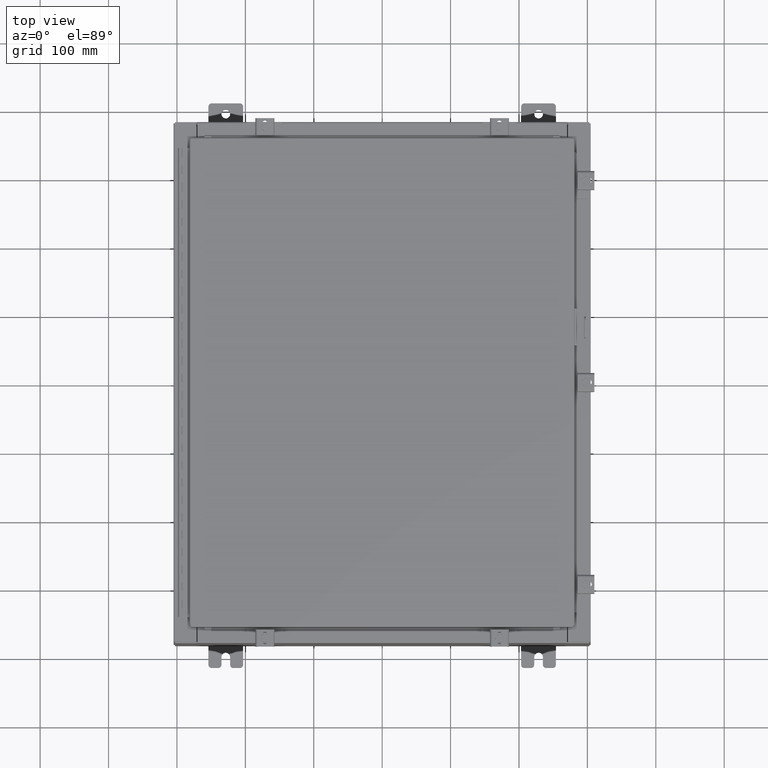
[diagram: clean part render]
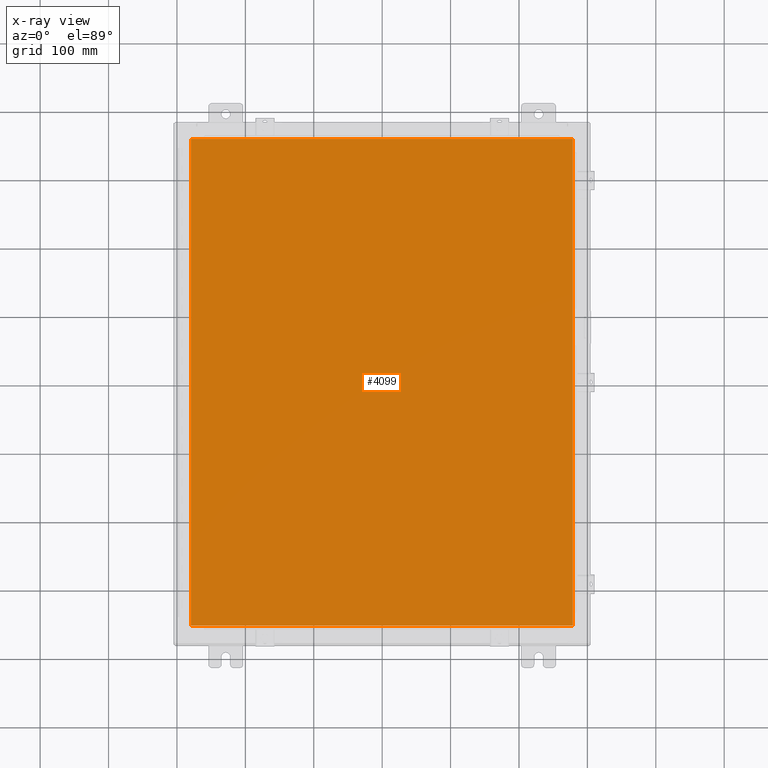
[diagram: x-ray — body ghosted, one internal face saturated and labeled with its STEP entity id]
A machine part, top view, then the same camera in x-ray: the body is ghosted and one INTERNAL B-rep face — a face not visible from any outside direction — is saturated and labeled: STEP entity #4099.
In plain terms, the highlighted planar face has unit normal (0, 0, -1).
Its self-contained STEP definition (entity closure, byte-faithful):
#705 = ORIENTED_EDGE ( 'NONE', *, *, #5017, .F. ) ;
#756 = VERTEX_POINT ( 'NONE', #33706 ) ;
#794 = VECTOR ( 'NONE', #20764, 39.37007874015748100 ) ;
#1970 = DIRECTION ( 'NONE',  ( -1.000000000000000000, 0.0000000000000000000, -0.0000000000000000000 ) ) ;
#2136 = EDGE_LOOP ( 'NONE', ( #16953, #705, #3767, #4758 ) ) ;
#2356 = DIRECTION ( 'NONE',  ( 0.0000000000000000000, 0.0000000000000000000, -1.000000000000000000 ) ) ;
#2788 = CARTESIAN_POINT ( 'NONE',  ( -10.99030000000000000, -14.00629999999999600, -0.07470000000000000300 ) ) ;
#2851 = CARTESIAN_POINT ( 'NONE',  ( 0.0000000000000000000, 0.0000000000000000000, -0.07470000000000000300 ) ) ;
#3070 = EDGE_CURVE ( 'NONE', #756, #28246, #9486, .T. ) ;
#3575 = EDGE_CURVE ( 'NONE', #28246, #22779, #30667, .T. ) ;
#3767 = ORIENTED_EDGE ( 'NONE', *, *, #3575, .F. ) ;
#4099 = ADVANCED_FACE ( 'NONE', ( #28880 ), #4649, .T. ) ;
#4649 = PLANE ( 'NONE',  #33696 ) ;
#4758 = ORIENTED_EDGE ( 'NONE', *, *, #3070, .F. ) ;
#5017 = EDGE_CURVE ( 'NONE', #22779, #6864, #37297, .T. ) ;
#5155 = VECTOR ( 'NONE', #32062, 39.37007874015748100 ) ;
#5820 = EDGE_CURVE ( 'NONE', #6864, #756, #28301, .T. ) ;
#6864 = VERTEX_POINT ( 'NONE', #7729 ) ;
#7729 = CARTESIAN_POINT ( 'NONE',  ( 10.99030000000000000, -14.00629999999999800, -0.07470000000000000300 ) ) ;
#9486 = LINE ( 'NONE', #18233, #794 ) ;
#13429 = VECTOR ( 'NONE', #33714, 39.37007874015748100 ) ;
#16270 = DIRECTION ( 'NONE',  ( 0.0000000000000000000, -1.000000000000000000, 0.0000000000000000000 ) ) ;
#16953 = ORIENTED_EDGE ( 'NONE', *, *, #5820, .F. ) ;
#18233 = CARTESIAN_POINT ( 'NONE',  ( 10.99030000000000000, 14.00629999999999800, -0.07470000000000019700 ) ) ;
#18261 = CARTESIAN_POINT ( 'NONE',  ( -10.99030000000000000, 14.00630000000000100, -0.07470000000000019700 ) ) ;
#20764 = DIRECTION ( 'NONE',  ( -1.000000000000000000, -0.0000000000000000000, -0.0000000000000000000 ) ) ;
#22779 = VERTEX_POINT ( 'NONE', #2788 ) ;
#28246 = VERTEX_POINT ( 'NONE', #34818 ) ;
#28301 = LINE ( 'NONE', #31981, #5155 ) ;
#28880 = FACE_OUTER_BOUND ( 'NONE', #2136, .T. ) ;
#30667 = LINE ( 'NONE', #18261, #31570 ) ;
#31570 = VECTOR ( 'NONE', #16270, 39.37007874015748100 ) ;
#31981 = CARTESIAN_POINT ( 'NONE',  ( 10.99030000000000000, -14.00629999999999800, -0.07470000000000019700 ) ) ;
#32062 = DIRECTION ( 'NONE',  ( 0.0000000000000000000, 1.000000000000000000, 0.0000000000000000000 ) ) ;
#33696 = AXIS2_PLACEMENT_3D ( 'NONE', #2851, #2356, #1970 ) ;
#33706 = CARTESIAN_POINT ( 'NONE',  ( 10.99030000000000000, 14.00629999999999800, -0.07470000000000000300 ) ) ;
#33714 = DIRECTION ( 'NONE',  ( 1.000000000000000000, -0.0000000000000000000, -0.0000000000000000000 ) ) ;
#34050 = CARTESIAN_POINT ( 'NONE',  ( -10.99029999999999600, -14.00629999999999800, -0.07470000000000019700 ) ) ;
#34818 = CARTESIAN_POINT ( 'NONE',  ( -10.99030000000000000, 14.00629999999999800, -0.07470000000000000300 ) ) ;
#37297 = LINE ( 'NONE', #34050, #13429 ) ;